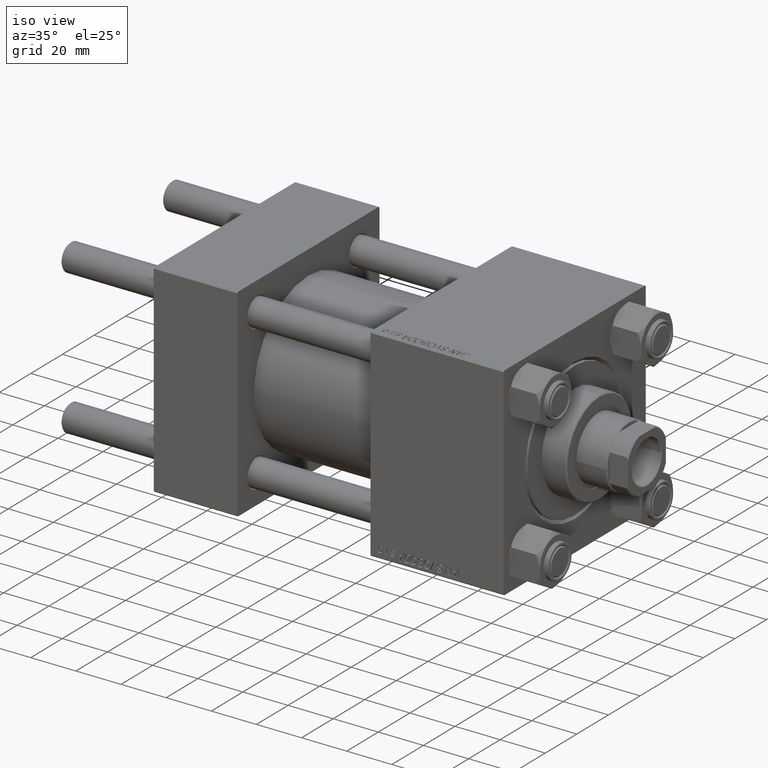
[diagram: clean part render]
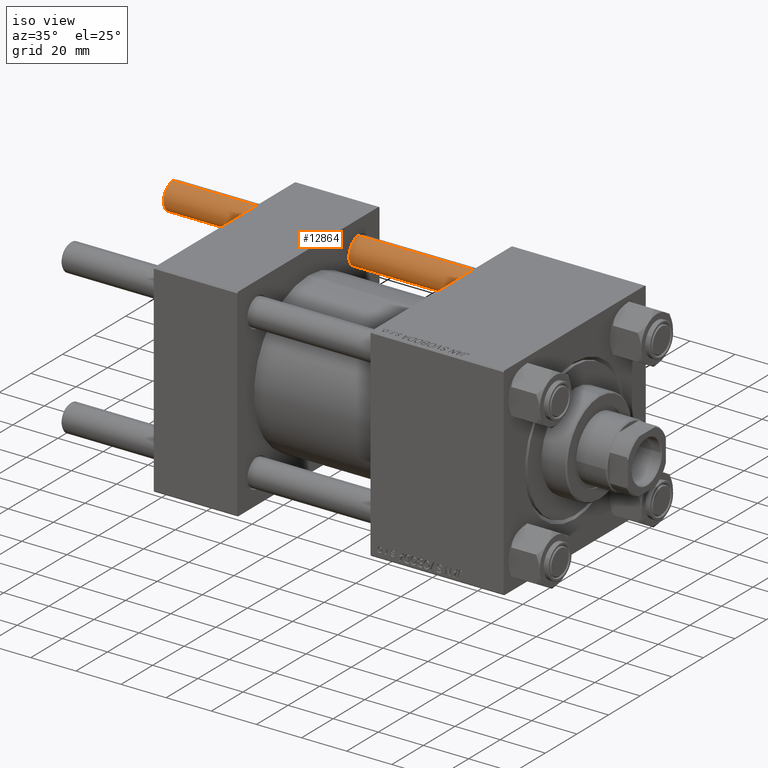
[diagram: same view with one face highlighted and labeled with its STEP entity id]
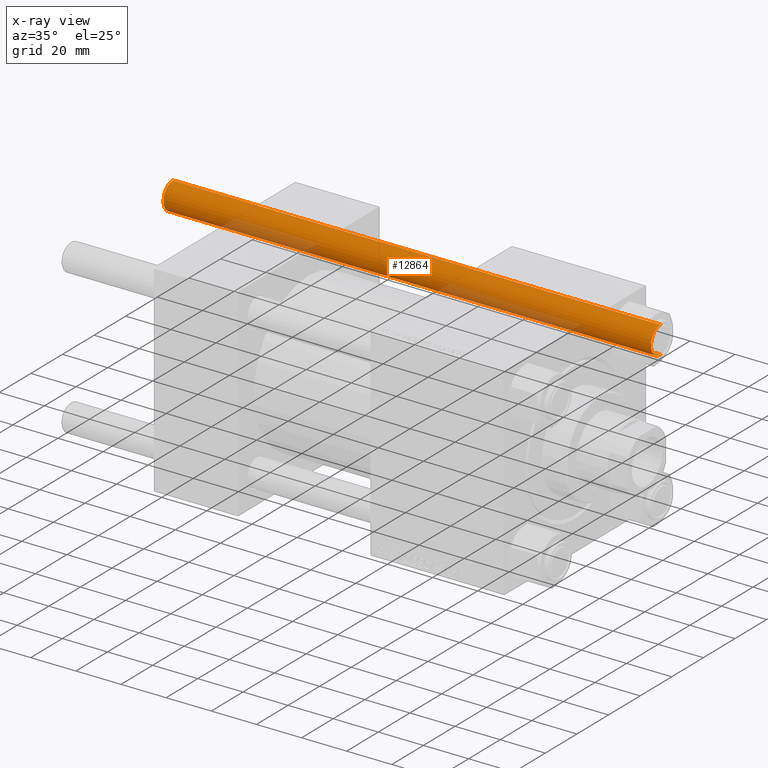
[diagram: x-ray of the same camera — body ghosted, the highlighted face saturated]
A machine part, iso view. The second image highlights one B-rep face of the part: STEP entity #12864.
The next image is the same camera in x-ray: the body ghosted, the highlighted face saturated — about 16% of this face is hidden behind the body in this view.
In plain terms, the highlighted cylindrical surface (edge-blend (fillet) strip) has radius 6 mm, axis along (-1, -0, -0).
Its self-contained STEP definition (entity closure, byte-faithful):
#777 = ORIENTED_EDGE ( 'NONE', *, *, #8164, .T. ) ;
#896 = LINE ( 'NONE', #12201, #23802 ) ;
#1298 = DIRECTION ( 'NONE',  ( -0.000000000000000000, -0.000000000000000000, -1.000000000000000000 ) ) ;
#3058 = CARTESIAN_POINT ( 'NONE',  ( 6.000000000000000888, 7.347880794884120722E-16, 217.0000000000000000 ) ) ;
#5688 = CARTESIAN_POINT ( 'NONE',  ( -6.000000000000000888, 0.000000000000000000, 0.4999999999999449329 ) ) ;
#5829 = ORIENTED_EDGE ( 'NONE', *, *, #17300, .F. ) ;
#7407 = ORIENTED_EDGE ( 'NONE', *, *, #17921, .T. ) ;
#8164 = EDGE_CURVE ( 'NONE', #10417, #18960, #896, .T. ) ;
#8435 = DIRECTION ( 'NONE',  ( -0.000000000000000000, -0.000000000000000000, -1.000000000000000000 ) ) ;
#10337 = AXIS2_PLACEMENT_3D ( 'NONE', #30085, #18227, #45437 ) ;
#10417 = VERTEX_POINT ( 'NONE', #33824 ) ;
#10917 = EDGE_CURVE ( 'NONE', #31934, #10417, #14228, .T. ) ;
#12201 = CARTESIAN_POINT ( 'NONE',  ( -6.000000000000000888, 0.000000000000000000, 217.0000000000000000 ) ) ;
#12743 = CIRCLE ( 'NONE', #10337, 6.000000000000000888 ) ;
#12864 = ADVANCED_FACE ( 'NONE', ( #47147 ), #28515, .T. ) ;
#14118 = LINE ( 'NONE', #3058, #36869 ) ;
#14228 = CIRCLE ( 'NONE', #23870, 6.000000000000000888 ) ;
#16396 = DIRECTION ( 'NONE',  ( -1.000000000000000000, 0.000000000000000000, 0.000000000000000000 ) ) ;
#17077 = VERTEX_POINT ( 'NONE', #17412 ) ;
#17300 = EDGE_CURVE ( 'NONE', #31934, #17077, #14118, .T. ) ;
#17412 = CARTESIAN_POINT ( 'NONE',  ( 6.000000000000000888, 7.347880794884120722E-16, 0.4999999999999449329 ) ) ;
#17921 = EDGE_CURVE ( 'NONE', #18960, #17077, #12743, .T. ) ;
#18227 = DIRECTION ( 'NONE',  ( -0.000000000000000000, -0.000000000000000000, 1.000000000000000000 ) ) ;
#18960 = VERTEX_POINT ( 'NONE', #5688 ) ;
#22336 = DIRECTION ( 'NONE',  ( 1.000000000000000000, 0.000000000000000000, 0.000000000000000000 ) ) ;
#23802 = VECTOR ( 'NONE', #8435, 1000.000000000000000 ) ;
#23870 = AXIS2_PLACEMENT_3D ( 'NONE', #26384, #33214, #22336 ) ;
#26384 = CARTESIAN_POINT ( 'NONE',  ( 0.000000000000000000, 0.000000000000000000, 216.4999999999999716 ) ) ;
#28515 = CYLINDRICAL_SURFACE ( 'NONE', #32860, 6.000000000000000888 ) ;
#30085 = CARTESIAN_POINT ( 'NONE',  ( 0.000000000000000000, 0.000000000000000000, 0.4999999999999449329 ) ) ;
#31934 = VERTEX_POINT ( 'NONE', #47374 ) ;
#31993 = EDGE_LOOP ( 'NONE', ( #5829, #41341, #777, #7407 ) ) ;
#32860 = AXIS2_PLACEMENT_3D ( 'NONE', #43111, #1298, #16396 ) ;
#33214 = DIRECTION ( 'NONE',  ( 0.000000000000000000, 0.000000000000000000, -1.000000000000000000 ) ) ;
#33802 = DIRECTION ( 'NONE',  ( -0.000000000000000000, -0.000000000000000000, -1.000000000000000000 ) ) ;
#33824 = CARTESIAN_POINT ( 'NONE',  ( -6.000000000000000888, 0.000000000000000000, 216.4999999999999716 ) ) ;
#36869 = VECTOR ( 'NONE', #33802, 1000.000000000000000 ) ;
#41341 = ORIENTED_EDGE ( 'NONE', *, *, #10917, .T. ) ;
#43111 = CARTESIAN_POINT ( 'NONE',  ( 0.000000000000000000, 0.000000000000000000, 217.0000000000000000 ) ) ;
#45437 = DIRECTION ( 'NONE',  ( 1.000000000000000000, 0.000000000000000000, 0.000000000000000000 ) ) ;
#47147 = FACE_OUTER_BOUND ( 'NONE', #31993, .T. ) ;
#47374 = CARTESIAN_POINT ( 'NONE',  ( 6.000000000000000888, 7.347880794884120722E-16, 216.4999999999999716 ) ) ;